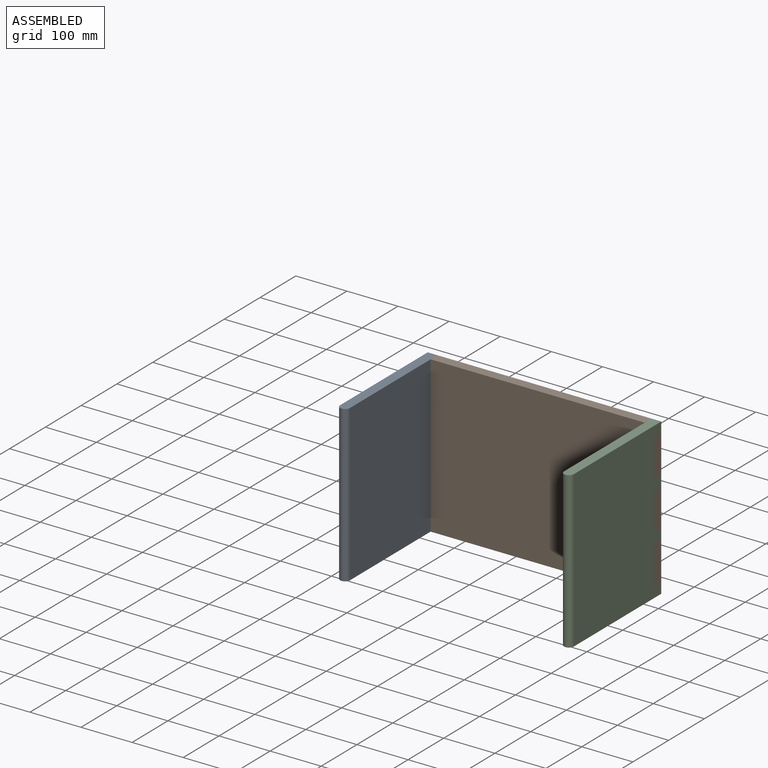
[diagram: assembled view]
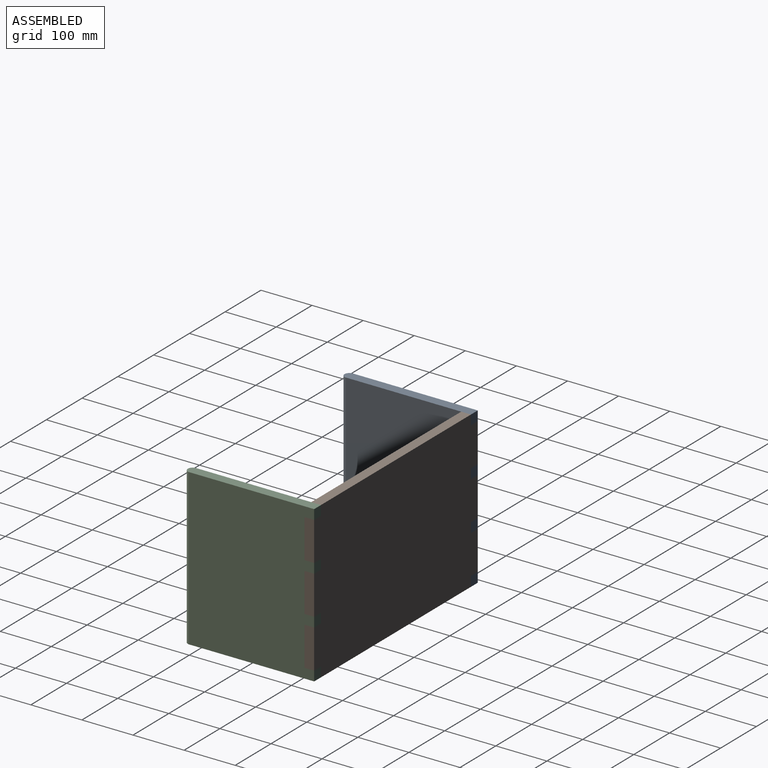
[diagram: assembled view, second angle]
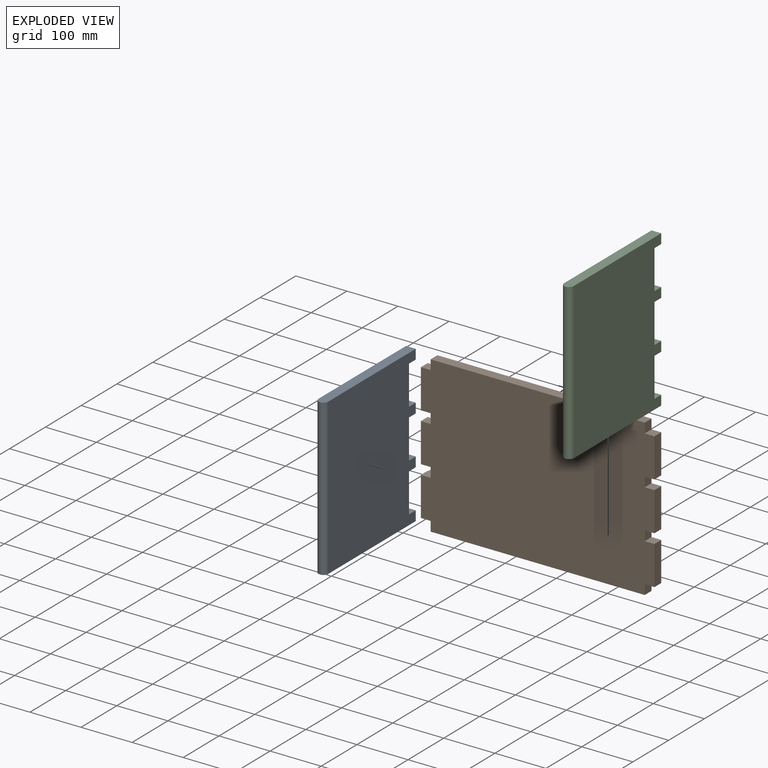
[diagram: exploded view]
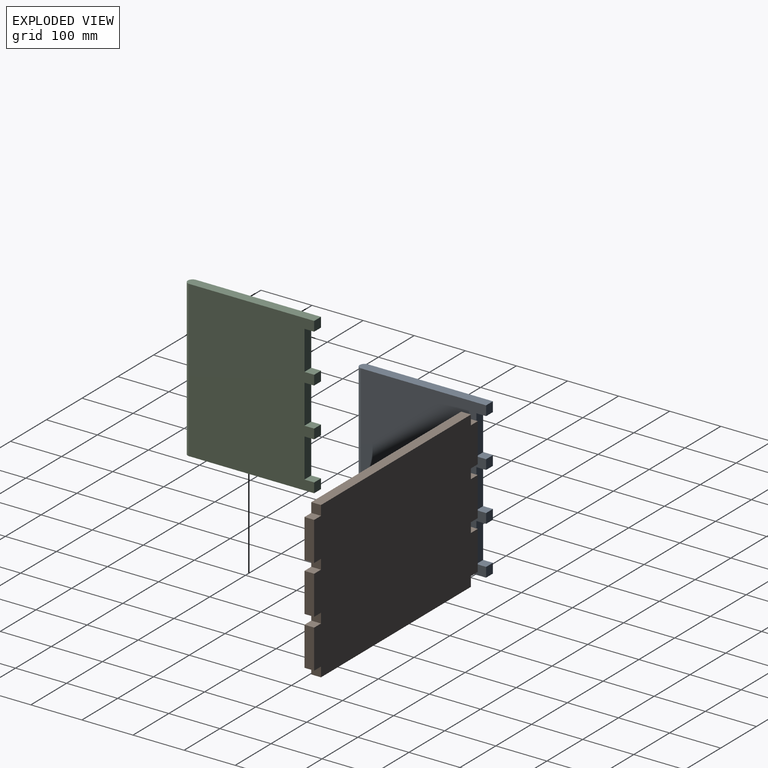
[diagram: exploded view, second angle]
ASSEMBLY  parts=3 mates=6
PART A: 18 faces, bbox 19.1x254x304.8 mm
  f0: plane 19.05x19.05mm, normal (0,1,0), area 362.9mm2, adj f3,f4,f13,f17
  f1: plane 19.05x19.05mm, normal (0,1,0), area 362.9mm2, adj f3,f4,f11,f12
  f2: plane 19.05x19.05mm, normal (0,1,0), area 362.9mm2, adj f3,f4,f5,f10
  f3: plane 304.8x244.48mm, normal (1,0,0), area 70161.1mm2, adj f0,f1,f2,f5,f6,f7,f8,f9
  f4: plane 304.8x244.48mm, normal (-1,0,0), area 70161.1mm2, adj f0,f1,f2,f5,f6,f7,f8,f9
  f5: plane 254x19.05mm, normal (0,0,-1), area 4799.8mm2, adj f2,f3,f4,f8
  f6: plane 19.05x19.05mm, normal (0,1,0), area 362.9mm2, adj f3,f4,f7,f15
  f7: plane 254x19.05mm, normal (0,0,1), area 4799.8mm2, adj f3,f4,f6,f8
  f8: cylinder r=9.53mm len=304.8mm, axis (0,0,1), area 9120.7mm2, adj f3,f4,f5,f7
  f9: plane 76.2x19.05mm, normal (0,1,0), area 1451.6mm2, adj f3,f4,f10,f11
  f10: plane 19.05x19.05mm, normal (0,0,1), area 362.9mm2, adj f2,f3,f4,f9
  f11: plane 19.05x19.05mm, normal (0,0,-1), area 362.9mm2, adj f1,f3,f4,f9
  f12: plane 19.05x19.05mm, normal (0,0,1), area 362.9mm2, adj f1,f3,f4,f14
  f13: plane 19.05x19.05mm, normal (0,0,-1), area 362.9mm2, adj f0,f3,f4,f14
  f14: plane 76.2x19.05mm, normal (0,1,0), area 1451.6mm2, adj f3,f4,f12,f13
  f15: plane 19.05x19.05mm, normal (0,0,-1), area 362.9mm2, adj f3,f4,f6,f16
  f16: plane 76.2x19.05mm, normal (0,1,0), area 1451.6mm2, adj f3,f4,f15,f17
  f17: plane 19.05x19.05mm, normal (0,0,1), area 362.9mm2, adj f0,f3,f4,f16
PART B: 30 faces, bbox 457.2x19.1x304.8 mm
  f0: plane 419.1x19.05mm, normal (0,0,-1), area 7983.9mm2, adj f5,f8,f17,f29
  f1: plane 76.2x19.05mm, normal (1,0,0), area 1451.6mm2, adj f5,f8,f23,f26
  f2: plane 76.2x19.05mm, normal (1,0,0), area 1451.6mm2, adj f5,f8,f20,f24
  f3: plane 76.2x19.05mm, normal (1,0,0), area 1451.6mm2, adj f5,f8,f21,f28
  f4: plane 419.1x19.05mm, normal (0,0,1), area 7983.9mm2, adj f5,f8,f19,f27
  f5: plane 457.2x304.8mm, normal (0,-1,0), area 136451.3mm2, adj f0,f1,f2,f3,f4,f6,f7,f9
  f6: plane 76.2x19.05mm, normal (-1,0,0), area 1451.6mm2, adj f5,f8,f11,f13
  f7: plane 76.2x19.05mm, normal (-1,0,0), area 1451.6mm2, adj f5,f8,f10,f16
  f8: plane 457.2x304.8mm, normal (0,1,0), area 136451.3mm2, adj f0,f1,f2,f3,f4,f6,f7,f9
  f9: plane 76.2x19.05mm, normal (-1,0,0), area 1451.6mm2, adj f5,f8,f14,f18
  f10: plane 19.05x19.05mm, normal (0,0,1), area 362.9mm2, adj f5,f7,f8,f12
  f11: plane 19.05x19.05mm, normal (0,0,-1), area 362.9mm2, adj f5,f6,f8,f12
  f12: plane 19.05x19.05mm, normal (-1,0,0), area 362.9mm2, adj f5,f8,f10,f11
  f13: plane 19.05x19.05mm, normal (0,0,1), area 362.9mm2, adj f5,f6,f8,f15
  f14: plane 19.05x19.05mm, normal (0,0,-1), area 362.9mm2, adj f5,f8,f9,f15
  f15: plane 19.05x19.05mm, normal (-1,0,0), area 362.9mm2, adj f5,f8,f13,f14
  f16: plane 19.05x19.05mm, normal (0,0,-1), area 362.9mm2, adj f5,f7,f8,f17
  f17: plane 19.05x19.05mm, normal (-1,0,0), area 362.9mm2, adj f0,f5,f8,f16
  f18: plane 19.05x19.05mm, normal (0,0,1), area 362.9mm2, adj f5,f8,f9,f19
  f19: plane 19.05x19.05mm, normal (-1,0,0), area 362.9mm2, adj f4,f5,f8,f18
  f20: plane 19.05x19.05mm, normal (0,0,-1), area 362.9mm2, adj f2,f5,f8,f22
  f21: plane 19.05x19.05mm, normal (0,0,1), area 362.9mm2, adj f3,f5,f8,f22
  f22: plane 19.05x19.05mm, normal (1,0,0), area 362.9mm2, adj f5,f8,f20,f21
  f23: plane 19.05x19.05mm, normal (0,0,-1), area 362.9mm2, adj f1,f5,f8,f25
  f24: plane 19.05x19.05mm, normal (0,0,1), area 362.9mm2, adj f2,f5,f8,f25
  f25: plane 19.05x19.05mm, normal (1,0,0), area 362.9mm2, adj f5,f8,f23,f24
  f26: plane 19.05x19.05mm, normal (0,0,1), area 362.9mm2, adj f1,f5,f8,f27
  f27: plane 19.05x19.05mm, normal (1,0,0), area 362.9mm2, adj f4,f5,f8,f26
  f28: plane 19.05x19.05mm, normal (0,0,-1), area 362.9mm2, adj f3,f5,f8,f29
  f29: plane 19.05x19.05mm, normal (1,0,0), area 362.9mm2, adj f0,f5,f8,f28
PART C: same geometry as A
PLACE A t=(-364.92,-194.48,69.28)mm
PLACE B t=(-145.85,-77,69.28)mm
PLACE C t=(73.23,-194.48,69.28)mm
MATE planar B.f4 <-> C.f7  axis (0,0,1) through (-145.85,-77,221.68)mm
MATE planar C.f6 <-> B.f8  axis (0,1,0) through (73.23,-67.48,212.15)mm
MATE planar A.f3 <-> B.f19  axis (1,0,0) through (-355.4,-196.71,69.28)mm
MATE planar A.f7 <-> B.f4  axis (0,0,1) through (-364.92,-193.47,221.68)mm
MATE planar A.f6 <-> B.f8  axis (0,1,0) through (-364.92,-67.48,212.15)mm
MATE planar B.f27 <-> C.f4  axis (1,0,0) through (63.7,-77,212.15)mm
